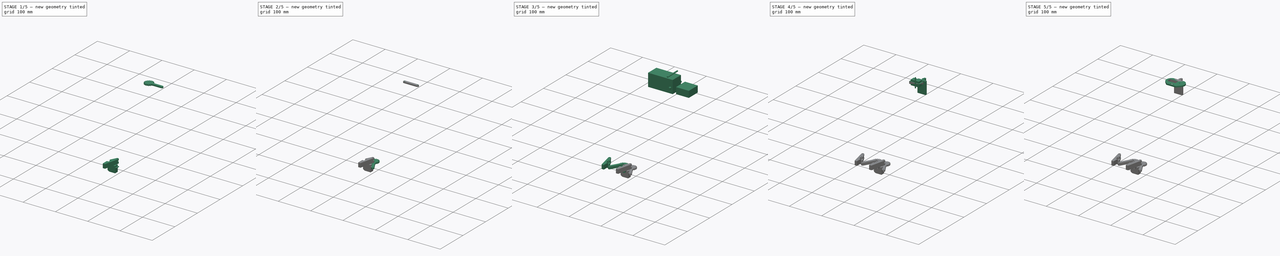
[diagram: build sequence overview — one tinted view per stage of 5, left to right]
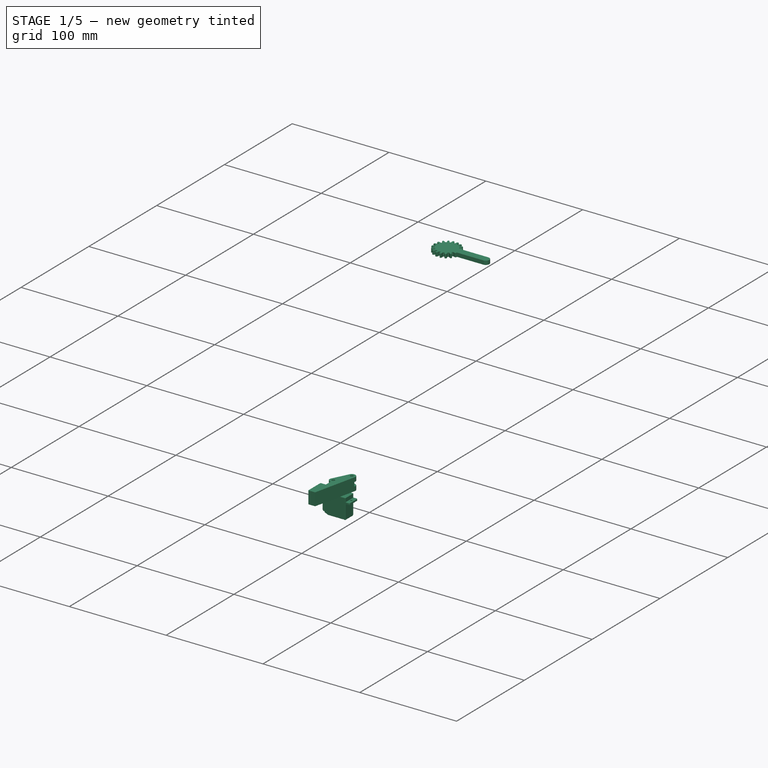
[diagram: stage 1 of 5 — iso view after this stage's code; geometry added in this stage tinted green]
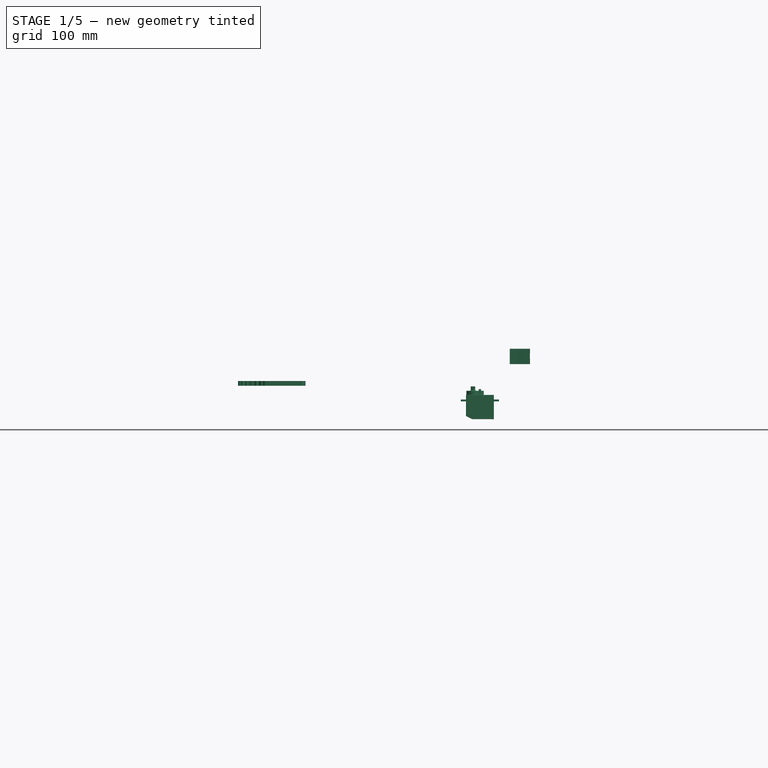
[diagram: stage 1 of 5 — front view after this stage's code; geometry added in this stage tinted green]
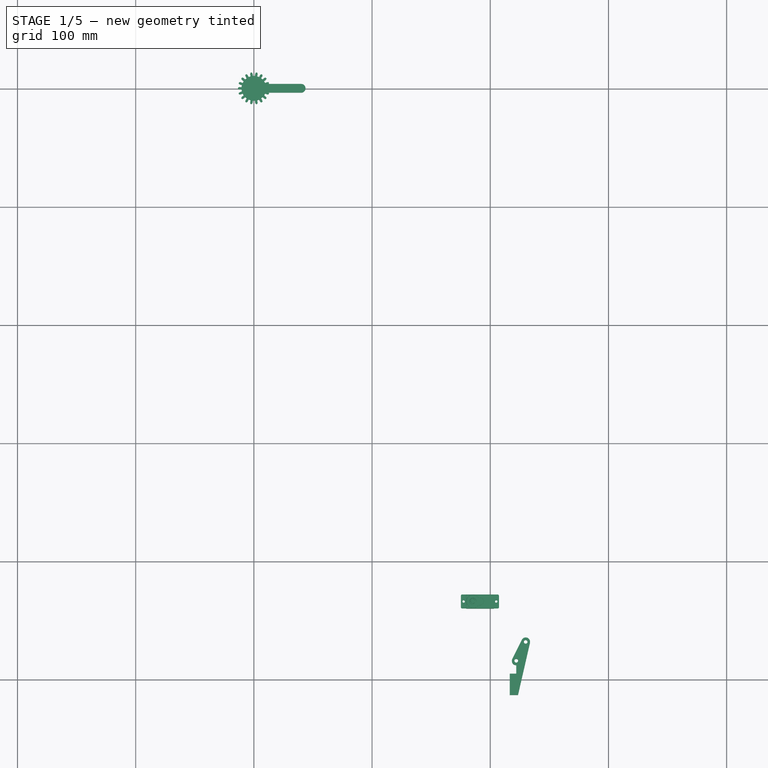
[diagram: stage 1 of 5 — top view after this stage's code; geometry added in this stage tinted green]
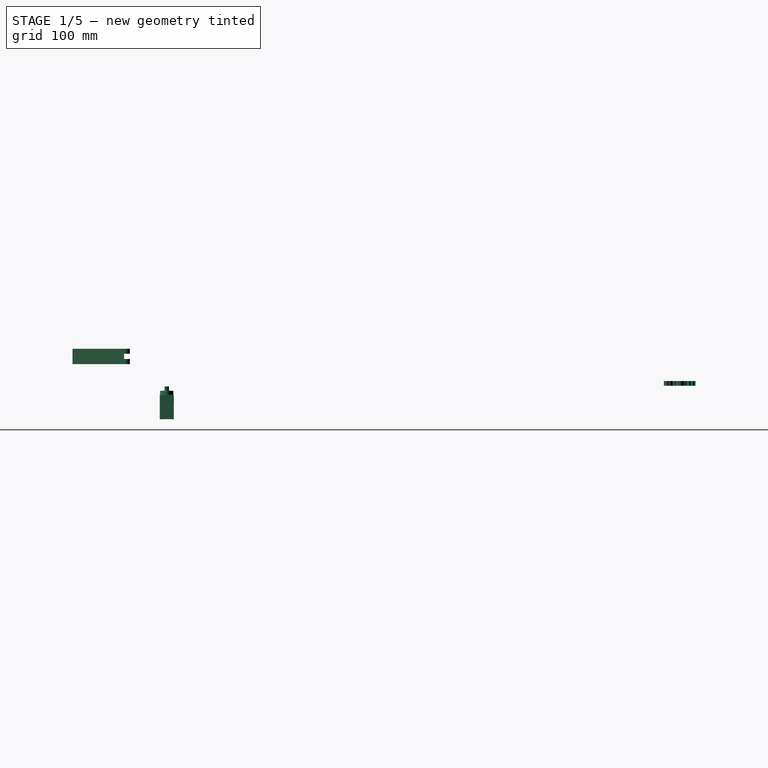
[diagram: stage 1 of 5 — right view after this stage's code; geometry added in this stage tinted green]
FCSTD DOCUMENT  (FreeCAD 0.16R6712 (Git))
Label: cajamotor
License: All rights reserved
LicenseURL: http://en.wikipedia.org/wiki/All_rights_reserved
objects: Part::FeaturePython×21, Part::Cut×12, Part::MultiFuse×9, Part::Cylinder×7, Sketcher::SketchObject×7, Part::Feature×6, Part::Box×5, PartDesign::Pad×4, Part::Fillet×3, PartDesign::Pocket×3, PartDesign::Body×2, Part::Part2DObjectPython×1, Part::Extrusion×1
note: 88 computed .brp shape members not serialized (recipe doc carries the construction recipe); baked Part::Feature solids carry a one-line shape summary decoded from their .brp

FEATURE [Sketcher::SketchObject] Sketch007  label="finger-sketch"
  sketch-geometry (9):
    g0: LineSegment StartX=0 StartY=0 StartZ=0 EndX=0 EndY=18 EndZ=0
    g1: LineSegment StartX=0 StartY=18 StartZ=0 EndX=-5.5 EndY=18 EndZ=0
    g2: LineSegment StartX=-5.5 StartY=18 StartZ=0 EndX=-5.5 EndY=25.2 EndZ=0
    g3: LineSegment StartX=-17.1064 StartY=44.073 StartZ=0 EndX=-7 EndY=0 EndZ=0
    g4: LineSegment StartX=-7 StartY=0 StartZ=0 EndX=0 EndY=0 EndZ=0
    g5: ArcOfCircle CenterX=-13.5 CenterY=44.9 CenterZ=0 NormalX=0 NormalY=0 NormalZ=1 Radius=3.7 StartAngle=0.463648 EndAngle=3.36701
    g6: ArcOfCircle CenterX=-5.5 CenterY=28.9 CenterZ=0 NormalX=0 NormalY=0 NormalZ=1 Radius=3.7 StartAngle=4.71239 EndAngle=6.74684
    g7: LineSegment StartX=-10.1906 StartY=46.5547 StartZ=0 EndX=-2.19063 EndY=30.5547 EndZ=0
    g8: Circle [constr] CenterX=-5.5 CenterY=28.9 CenterZ=0 NormalX=0 NormalY=0 NormalZ=1 Radius=3.7
  constraints (27):
    c: Vertical(g0)
    c: Coincident(g0,g1)
    c: Horizontal(g1)
    c: Coincident(g1,g2)
    c: Coincident(g3,g4)
    c: Coincident(g4,g0)
    c: Horizontal(g4)
    c: Coincident(g5,g3)
    c: Radius(g5) = 3.7
    c: Coincident(g6,g2)
    c: Coincident(g7,g5)
    c: Coincident(g7,g6)
    c: Equal(g6,g5)
    c: Tangent(g3,g5)
    c: Tangent(g7,g5)
    c: Tangent(g6,g7)
    c: Vertical(g2)
    c: DistanceY(g0) = 18
    c: DistanceX(g4) = 7
    c: DistanceX(g6,g5) = -8
    c: DistanceY(g6,g5) = 16
    c: PointOnObject(g6,g2)
    c: DistanceX(g1) = -5.5
    c: DistanceY(g2,g1) = -7.2
    c: Coincident(g0,g-1)
    c: Coincident(g8,g6)
    c: Equal(g6,g8)
FEATURE [PartDesign::Pad] Pad001  label="finger-body"
  Length = 13
  Length2 = 100
  Sketch = -> Sketch007
  Type = 0
FEATURE [Sketcher::SketchObject] Sketch001
  ExternalGeometry = -> [Pad001]
  Placement = pos=(10.4694,5.23469,0) rot=(0.400447,0.647936,0.647936;2.37981rad)
  Support = -> Pad001 [Face8]
  sketch-geometry (6):
    g0: LineSegment StartX=23.2529 StartY=8.7 StartZ=0 EndX=51.2529 EndY=8.7 EndZ=0
    g1: LineSegment StartX=51.2529 StartY=8.7 StartZ=0 EndX=51.2529 EndY=4.3 EndZ=0
    g2: LineSegment StartX=51.2529 StartY=4.3 StartZ=0 EndX=23.2529 EndY=4.3 EndZ=0
    g3: LineSegment StartX=23.2529 StartY=4.3 StartZ=0 EndX=23.2529 EndY=8.7 EndZ=0
    g4: LineSegment [constr] StartX=23.2529 StartY=6.5 StartZ=0 EndX=51.2529 EndY=6.5 EndZ=0
    g5: LineSegment [constr] StartX=37.2529 StartY=13 StartZ=0 EndX=37.2529 EndY=0 EndZ=0
  constraints (18):
    c: Coincident(g0,g1)
    c: Coincident(g1,g2)
    c: Coincident(g2,g3)
    c: Coincident(g3,g0)
    c: Horizontal(g0)
    c: Horizontal(g2)
    c: Vertical(g1)
    c: Vertical(g3)
    c: PointOnObject(g4,g3)
    c: PointOnObject(g4,g1)
    c: Symmetric(g2,g0,g4)
    c: DistanceY(g1) = -4.4
    c: PointOnObject(g5,g-3)
    c: PointOnObject(g5,g-1)
    c: Symmetric(g-3,g-3,g5)
    c: Symmetric(g4,g4,g5)
    c: DistanceX(g2) = -28
    c: Symmetric(g5,g5,g4)
FEATURE [PartDesign::Pocket] Pocket002  label="finger"
  Length = 7.4
  Sketch = -> Sketch001
  Type = 0
FEATURE [Part::Cylinder] Cylinder005  label="finger-drill-master"
  Angle = 360
  Height = 30
  Placement = pos=(0,0,-8) rot=(0,0,1;0rad)
  Radius = 1.6
FEATURE [Part::FeaturePython] Clone001  label="finger-claw-drill-1"  # Draft clone (typed FeaturePython)
  Objects = -> [Cylinder005]
  Placement = pos=(-5.5,28.9,-8) rot=(0,0,1;0rad)
  Scale = (1,1,1)
FEATURE [Part::FeaturePython] Clone002  label="finger-claw-drill-2"  # Draft clone (typed FeaturePython)
  Objects = -> [Cylinder005]
  Placement = pos=(-13.5,44.9,-8) rot=(0,0,1;0rad)
  Scale = (1,1,1)
FEATURE [Part::MultiFuse] Fusion011  label="finger-drills"
  Shapes = -> [Clone002,Clone001]
FEATURE [Part::Cut] Cut012  label="finger-final-src"
  Base = -> Pocket002
  Placement = pos=(0,-57,0) rot=(0,0,1;0rad)
  Tool = -> Fusion011
FEATURE [Part::Part2DObjectPython] InvoluteGear001  # Draft 2D object (typed FeaturePython)
  ExternalGear = true
  HighPrecision = true
  Modules = 1.35
  NumberOfTeeth = 18
  PressureAngle = 12
FEATURE [Sketcher::SketchObject] Sketch004  label="link-body-sketch002"
  sketch-geometry (4):
    g0: ArcOfCircle CenterX=0 CenterY=0 CenterZ=0 NormalX=0 NormalY=0 NormalZ=1 Radius=3.7 StartAngle=1.5708 EndAngle=4.71239
    g1: ArcOfCircle CenterX=40 CenterY=0 CenterZ=0 NormalX=0 NormalY=0 NormalZ=1 Radius=3.7 StartAngle=4.71239 EndAngle=7.85398
    g2: LineSegment StartX=0 StartY=-3.7 StartZ=0 EndX=40 EndY=-3.7 EndZ=0
    g3: LineSegment StartX=0 StartY=3.7 StartZ=0 EndX=40 EndY=3.7 EndZ=0
  constraints (9):
    c: Tangent(g0,g3) = 1.5708
    c: Tangent(g0,g2) = -1.5708
    c: Tangent(g2,g1) = -1.5708
    c: Tangent(g3,g1) = 1.5708
    c: Horizontal(g2)
    c: Equal(g0,g1)
    c: Coincident(g0,g-1)
    c: Radius(g0) = 3.7
    c: DistanceX(g2) = 40
FEATURE [PartDesign::Pad] Pad004  label="link-body002"
  Length = 4
  Length2 = 100
  Sketch = -> Sketch004
  Type = 0
FEATURE [Part::Extrusion] Extrude001
  Base = -> InvoluteGear001
  Dir = (0,0,4)
  Solid = true
FEATURE [Part::FeaturePython] Clone016  label="right-finger"  # Draft clone (typed FeaturePython)
  Objects = -> [Cut012]
  Placement = pos=(230.462,185.254,13) rot=(0,1,0;3.14159rad)
  Scale = (1,1,1)
FEATURE [Part::Feature] Part__Feature003  label="Emax-es08A-final"
  shape: bbox 32.2 x 12.1 x 25.4 mm, 95 faces (baked)
FEATURE [Part::Feature] Part__Feature004  label="Emax-es08A-final001"
  shape: bbox 3.784 x 3.784 x 8.4 mm, 50 faces (baked)
FEATURE [Part::Feature] Part__Feature005  label="Emax-es08A-final002"
  shape: bbox 1.8 x 1.8 x 15.3 mm, 18 faces (baked)
FEATURE [Part::Feature] Part__Feature006  label="Emax-es08A-final003"
  shape: bbox 1.8 x 1.8 x 15.3 mm, 18 faces (baked)
FEATURE [Part::Feature] Part__Feature007  label="Emax-es08A-final004"
  shape: bbox 1.8 x 1.8 x 15.3 mm, 18 faces (baked)
FEATURE [Part::Feature] Part__Feature008  label="Emax-es08A-final005"
  shape: bbox 1.8 x 1.8 x 15.3 mm, 18 faces (baked)
FEATURE [Part::MultiFuse] Fusion009  label="servo"
  Placement = pos=(72.7547,-498,1.99999) rot=(0,0.707107,0.707107;3.14159rad)
  Shapes = -> [Part__Feature003,Part__Feature004,Part__Feature005,Part__Feature006,Part__Feature007,Part__Feature008]
FEATURE [Part::FeaturePython] Clone184  label="Clone of right-finger"  # Draft clone (typed FeaturePython)
  Objects = -> [Clone016]
  Placement = pos=(216.462,-513.746,31.3) rot=(0,1,0;3.14159rad)
  Scale = (1,1,1)
FEATURE [Part::FeaturePython] Clone188  label="Clone of servo"  # Draft clone (typed FeaturePython)
  Objects = -> [Fusion009]
  Placement = pos=(191.25,-434,-18) rot=(0,0,1;3.14159rad)
  Scale = (1,1,1)
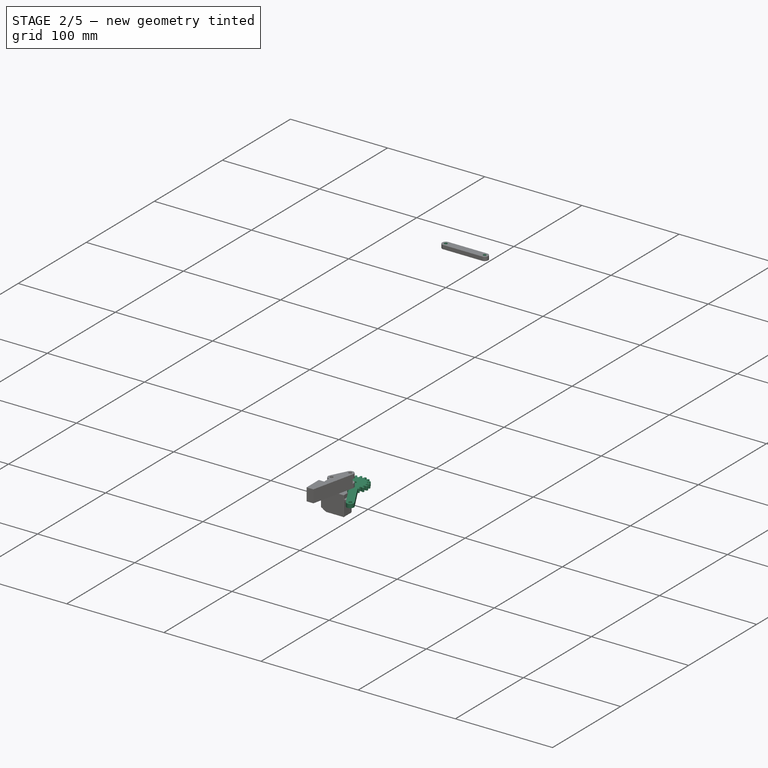
[diagram: stage 2 of 5 — iso view after this stage's code; geometry added in this stage tinted green]
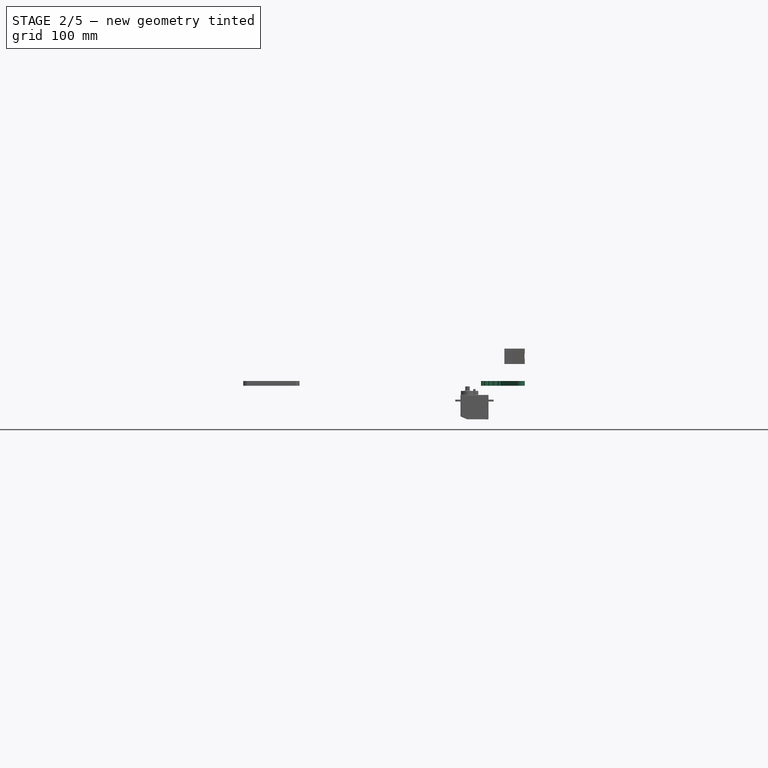
[diagram: stage 2 of 5 — front view after this stage's code; geometry added in this stage tinted green]
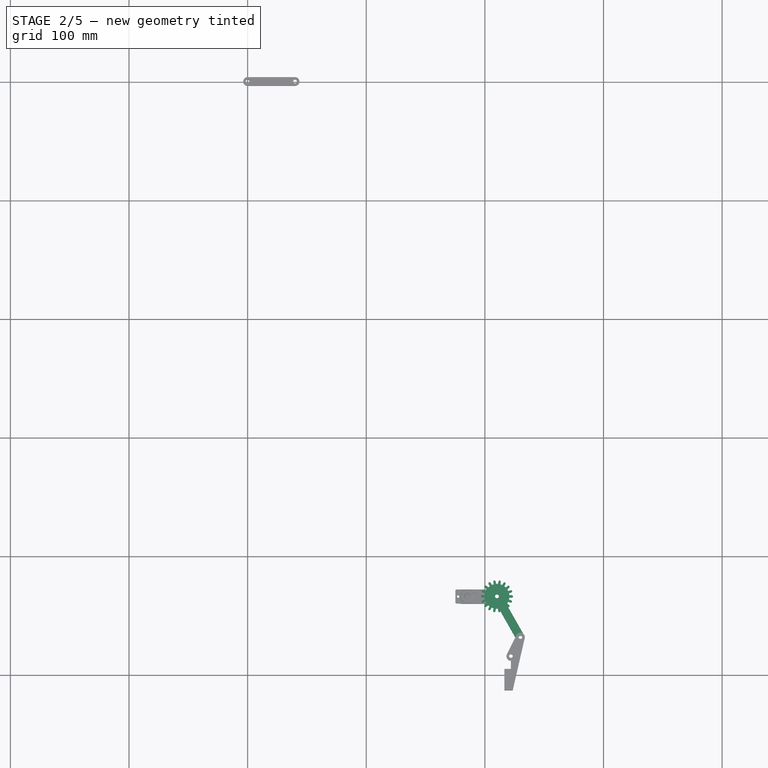
[diagram: stage 2 of 5 — top view after this stage's code; geometry added in this stage tinted green]
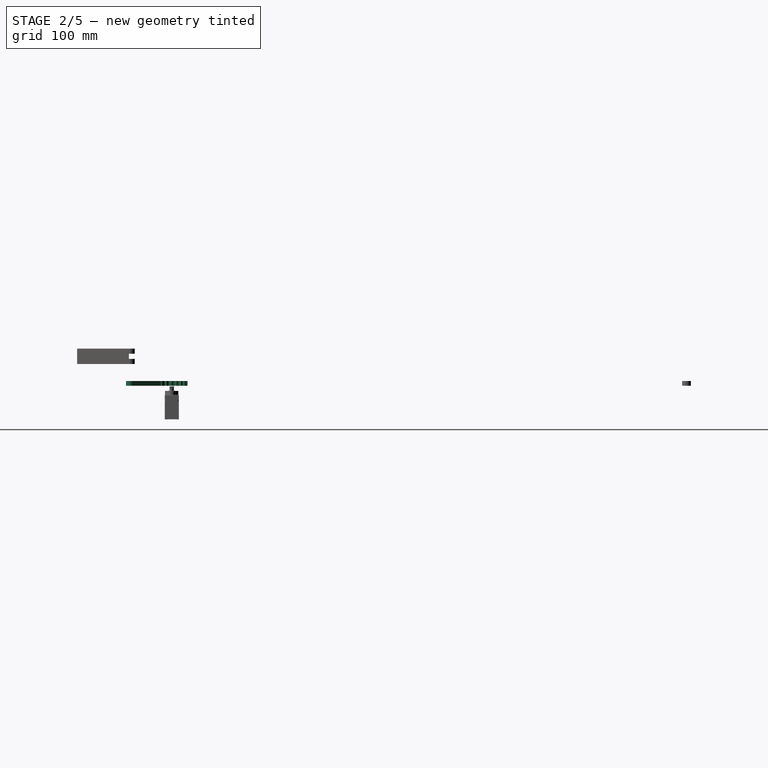
[diagram: stage 2 of 5 — right view after this stage's code; geometry added in this stage tinted green]
FEATURE [Sketcher::SketchObject] Sketch002  label="link-body-sketch"
  sketch-geometry (4):
    g0: ArcOfCircle CenterX=0 CenterY=0 CenterZ=0 NormalX=0 NormalY=0 NormalZ=1 Radius=3.7 StartAngle=1.5708 EndAngle=4.71239
    g1: ArcOfCircle CenterX=40 CenterY=0 CenterZ=0 NormalX=0 NormalY=0 NormalZ=1 Radius=3.7 StartAngle=4.71239 EndAngle=7.85398
    g2: LineSegment StartX=0 StartY=-3.7 StartZ=0 EndX=40 EndY=-3.7 EndZ=0
    g3: LineSegment StartX=0 StartY=3.7 StartZ=0 EndX=40 EndY=3.7 EndZ=0
  constraints (9):
    c: Tangent(g0,g3) = 1.5708
    c: Tangent(g0,g2) = -1.5708
    c: Tangent(g2,g1) = -1.5708
    c: Tangent(g3,g1) = 1.5708
    c: Horizontal(g2)
    c: Equal(g0,g1)
    c: Coincident(g0,g-1)
    c: Radius(g0) = 3.7
    c: DistanceX(g2) = 40
FEATURE [PartDesign::Pad] Pad002  label="link-body"
  Length = 4
  Length2 = 100
  Sketch = -> Sketch002
  Type = 0
FEATURE [Part::FeaturePython] Clone005  label="link-drill-1"  # Draft clone (typed FeaturePython)
  Objects = -> [Cylinder005]
  Placement = pos=(0,0,-8) rot=(0,0,1;0rad)
  Scale = (1,1,1)
FEATURE [Part::FeaturePython] Clone006  label="link-drill-002"  # Draft clone (typed FeaturePython)
  Objects = -> [Cylinder005]
  Placement = pos=(40,0,-8) rot=(0,0,1;0rad)
  Scale = (1,1,1)
FEATURE [Part::MultiFuse] Fusion012
  Shapes = -> [Clone005,Clone006]
FEATURE [Part::Cut] Cut001  label="link-master"
  Base = -> Pad002
  Tool = -> Fusion012
FEATURE [Part::Cylinder] Cylinder006  label="finger-drill-master002"
  Angle = 360
  Height = 30
  Placement = pos=(0,0,-8) rot=(0,0,1;0rad)
  Radius = 1.6
FEATURE [Part::FeaturePython] Clone013  label="gear-drill-003"  # Draft clone (typed FeaturePython)
  Objects = -> [Cylinder006]
  Placement = pos=(0,0,-8) rot=(0,0,1;0rad)
  Scale = (1,1,1)
FEATURE [Part::FeaturePython] Clone014  label="gear-drill-004"  # Draft clone (typed FeaturePython)
  Objects = -> [Cylinder006]
  Placement = pos=(40,0,-8) rot=(0,0,1;0rad)
  Scale = (1,1,1)
FEATURE [Part::MultiFuse] Fusion005  label="gear-drills001"
  Shapes = -> [Clone013,Clone014]
FEATURE [Part::MultiFuse] Fusion006
  Shapes = -> [Pad004,Extrude001]
FEATURE [Part::Cut] Cut003  label="right-gear"
  Base = -> Fusion006
  Placement = pos=(12.4,16,4.5) rot=(0,0,-1;1.5708rad)
  Tool = -> Fusion005
FEATURE [Part::FeaturePython] Clone015  label="right-gear001"  # Draft clone (typed FeaturePython)
  Objects = -> [Cut003]
  Placement = pos=(224.203,264.934,4.7) rot=(0,0,-1;1.05416rad)
  Scale = (1,1,1)
FEATURE [Part::FeaturePython] Clone183  label="Clone of right-gear001"  # Draft clone (typed FeaturePython)
  Objects = -> [Clone015]
  Placement = pos=(210.203,-434.066,0) rot=(0,0,-1;1.05416rad)
  Scale = (1,1,1)
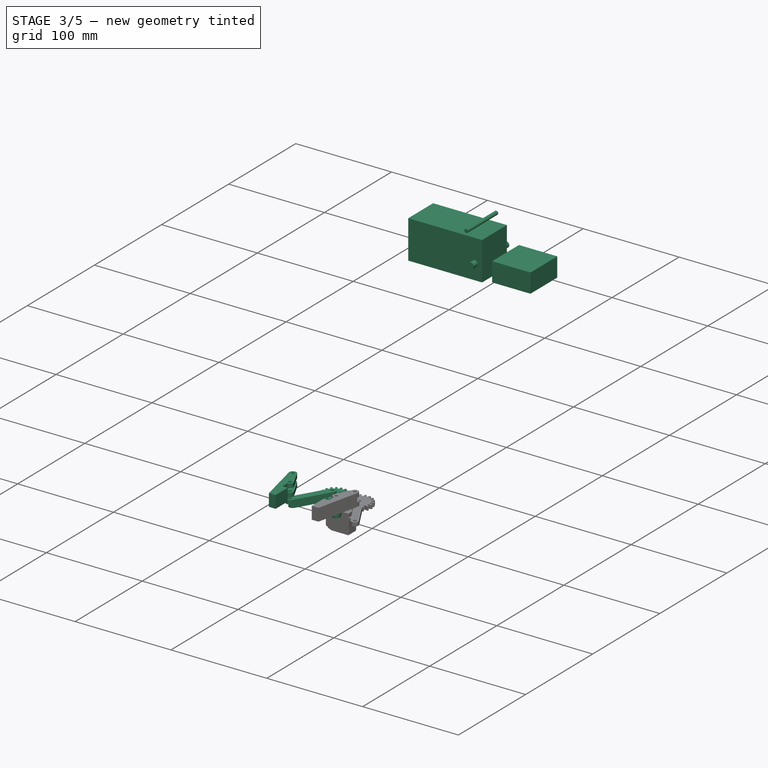
[diagram: stage 3 of 5 — iso view after this stage's code; geometry added in this stage tinted green]
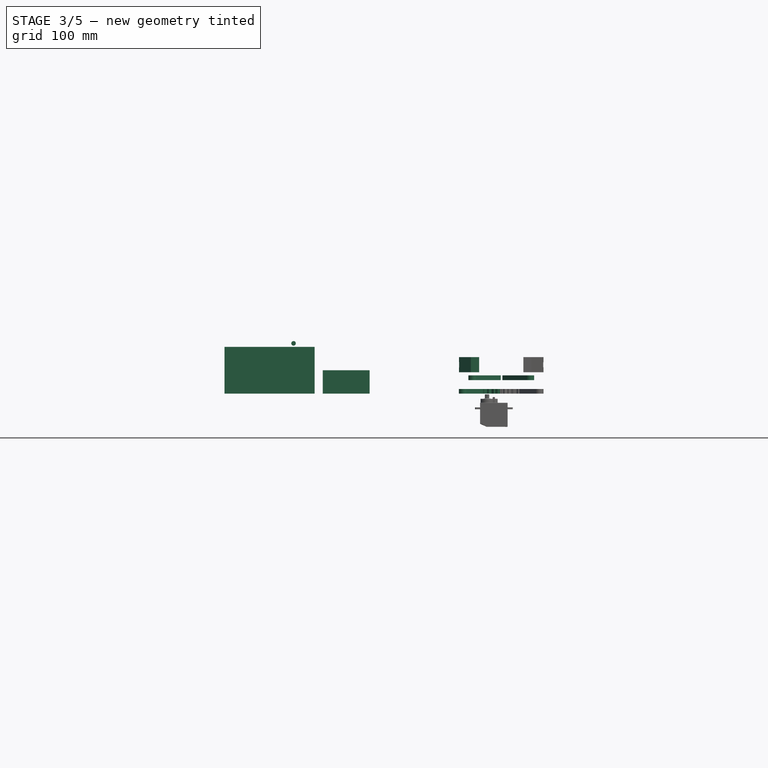
[diagram: stage 3 of 5 — front view after this stage's code; geometry added in this stage tinted green]
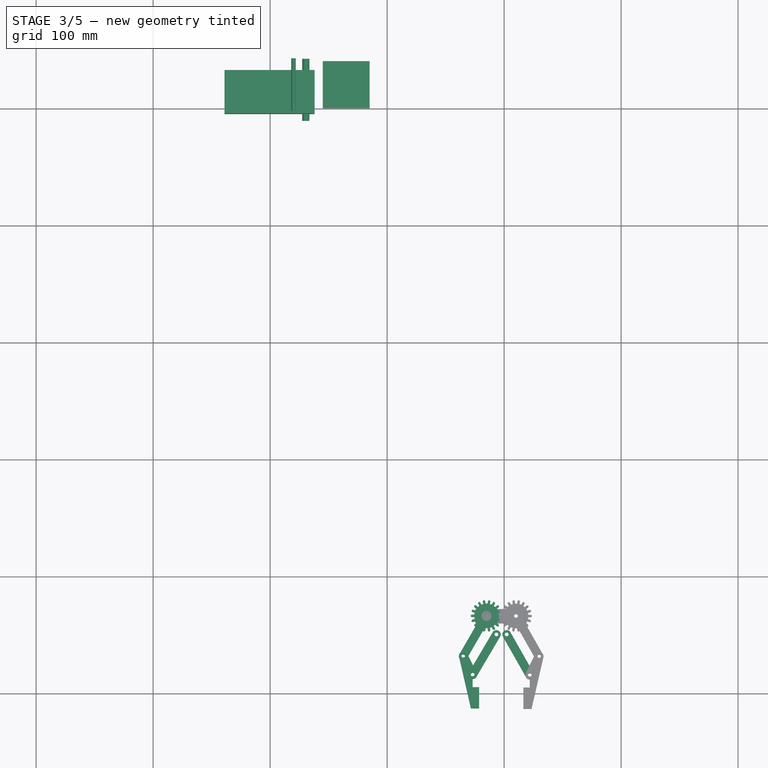
[diagram: stage 3 of 5 — top view after this stage's code; geometry added in this stage tinted green]
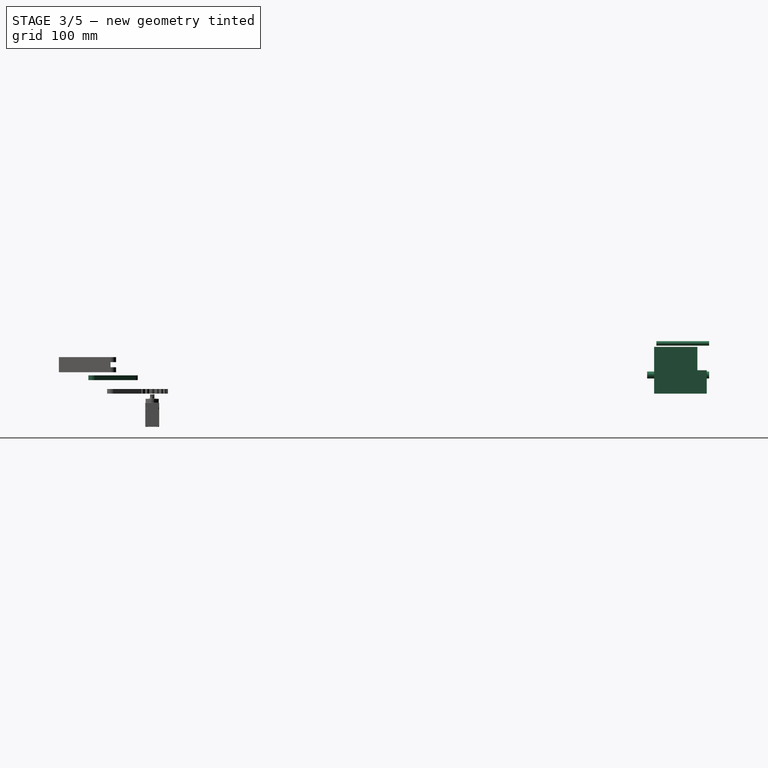
[diagram: stage 3 of 5 — right view after this stage's code; geometry added in this stage tinted green]
FEATURE [PartDesign::Body] Body002
FEATURE [PartDesign::Body] Body003  label="enganche"
  Placement = pos=(45,0,0) rot=(0,0,1;0rad)
FEATURE [Part::Box] Box005  label="Cubo004"
  Height = 20
  Length = 40
  Placement = pos=(45,0,0) rot=(0,0,1;0rad)
  Width = 40
FEATURE [Part::Cylinder] Cylinder003  label="Taladro"
  Angle = 360
  Height = 53
  Placement = pos=(30.5,42,16) rot=(1,0,0;1.5708rad)
  Radius = 3
FEATURE [Part::Cylinder] Cylinder004  label="Cilindro002"
  Angle = 360
  Height = 45
  Placement = pos=(20,42,43) rot=(1,0,0;1.5708rad)
  Radius = 1.95
FEATURE [Part::Box] Box006  label="Cubo005"
  Height = 40
  Length = 77
  Placement = pos=(-39,-5,0) rot=(0,0,1;0rad)
  Width = 37
FEATURE [Part::Cut] Cut011  label="left-gear"
  Placement = pos=(185,-434,0) rot=(0,0,1;4.18879rad)
FEATURE [Sketcher::SketchObject] Sketch
  Placement = pos=(185,-434,0) rot=(-0.5,0.866025,0;3.14159rad)
  Support = -> Cut011 [Face4]
  sketch-geometry (5):
    g0: ArcOfCircle CenterX=0 CenterY=0 CenterZ=0 NormalX=0 NormalY=0 NormalZ=1 Radius=4.2 StartAngle=1.45288 EndAngle=4.83031
    g1: ArcOfCircle CenterX=17.2 CenterY=0 CenterZ=0 NormalX=0 NormalY=0 NormalZ=1 Radius=2.2 StartAngle=4.73913 EndAngle=7.82723
    g2: LineSegment [constr] StartX=0 StartY=0 StartZ=0 EndX=17.2 EndY=0 EndZ=0
    g3: LineSegment StartX=0.494118 StartY=4.17083 StartZ=0 EndX=17.2588 EndY=2.19921 EndZ=0
    g4: LineSegment StartX=0.494118 StartY=-4.17083 StartZ=0 EndX=17.2588 EndY=-2.19921 EndZ=0
  constraints (12):
    c: Coincident(g0,g-1)
    c: PointOnObject(g1,g-1)
    c: Radius(g0) = 4.2
    c: Radius(g1) = 2.2
    c: Horizontal(g2)
    c: DistanceX(g-1,g1) = 17.2
    c: Coincident(g-1,g2)
    c: Coincident(g1,g3)
    c: Coincident(g0,g3)
    c: Coincident(g0,g4)
    c: Coincident(g1,g4)
    c: Coincident(g1,g2)
FEATURE [PartDesign::Pocket] Pocket
  Length = 3
  Placement = pos=(185,-434,0) rot=(0,0,-1;2.0944rad)
  Sketch = -> Sketch
  Type = 0
FEATURE [Sketcher::SketchObject] Sketch006
  Placement = pos=(185,-434,3) rot=(-0.5,0.866025,0;3.14159rad)
  Support = -> Pocket [Face175]
  sketch-geometry (1):
    g0: Circle CenterX=0 CenterY=0 CenterZ=0 NormalX=0 NormalY=0 NormalZ=1 Radius=4.2
  constraints (2):
    c: Coincident(g0,g-1)
    c: Radius(g0) = 4.2
FEATURE [PartDesign::Pocket] Pocket001
  Length = 5
  Placement = pos=(185,-434,0) rot=(0,0,-1;2.0944rad)
  Sketch = -> Sketch006
  Type = 0
FEATURE [Part::FeaturePython] Clone003  label="left-finger"  # Draft clone (typed FeaturePython)
  Objects = -> [Cut012]
  Placement = pos=(192.603,185.566,0) rot=(0,0,1;0rad)
  Scale = (1,1,1)
FEATURE [Part::FeaturePython] Clone007  label="left-link"  # Draft clone (typed FeaturePython)
  Objects = -> [Cut001]
  Placement = pos=(187.103,214.466,4.3) rot=(0,0,1;1.03858rad)
  Scale = (1,1,1)
FEATURE [Part::FeaturePython] Clone017  label="right-link"  # Draft clone (typed FeaturePython)
  Objects = -> [Cut001]
  Placement = pos=(216.204,248.934,4.3) rot=(0,0,-1;1.05416rad)
  Scale = (1,1,1)
FEATURE [Part::FeaturePython] Clone180  label="Clone of left-finger"  # Draft clone (typed FeaturePython)
  Objects = -> [Clone003]
  Placement = pos=(178.603,-513.434,18.3) rot=(0,0,1;0rad)
  Scale = (1,1,1)
FEATURE [Part::FeaturePython] Clone181  label="Clone of left-link"  # Draft clone (typed FeaturePython)
  Objects = -> [Clone007]
  Placement = pos=(173.103,-484.534,11.6) rot=(0,0,1;1.03858rad)
  Scale = (1,1,1)
FEATURE [Part::FeaturePython] Clone182  label="Clone of right-link"  # Draft clone (typed FeaturePython)
  Objects = -> [Clone017]
  Placement = pos=(202.204,-450.066,11.6) rot=(0,0,-1;1.05416rad)
  Scale = (1,1,1)
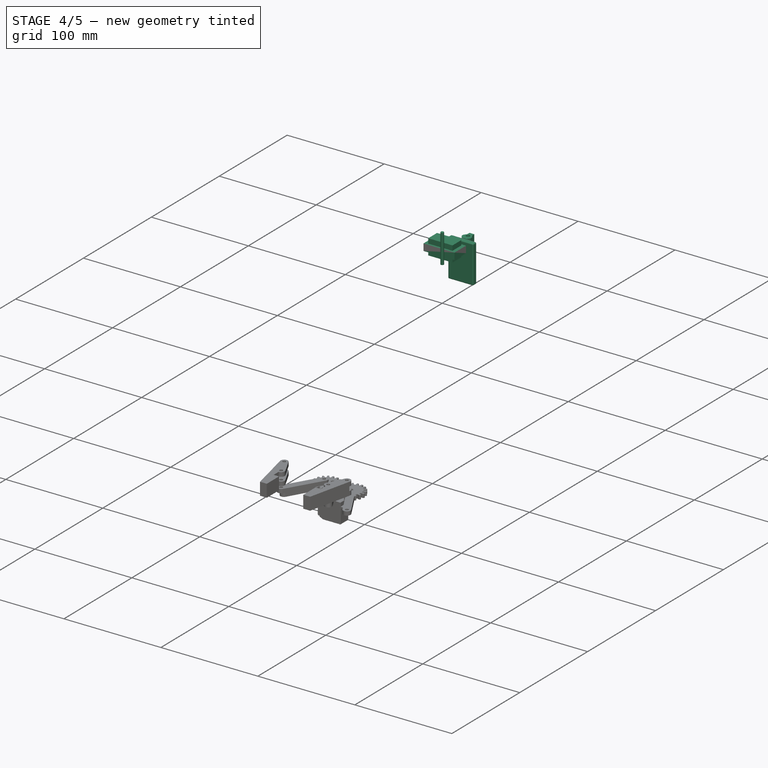
[diagram: stage 4 of 5 — iso view after this stage's code; geometry added in this stage tinted green]
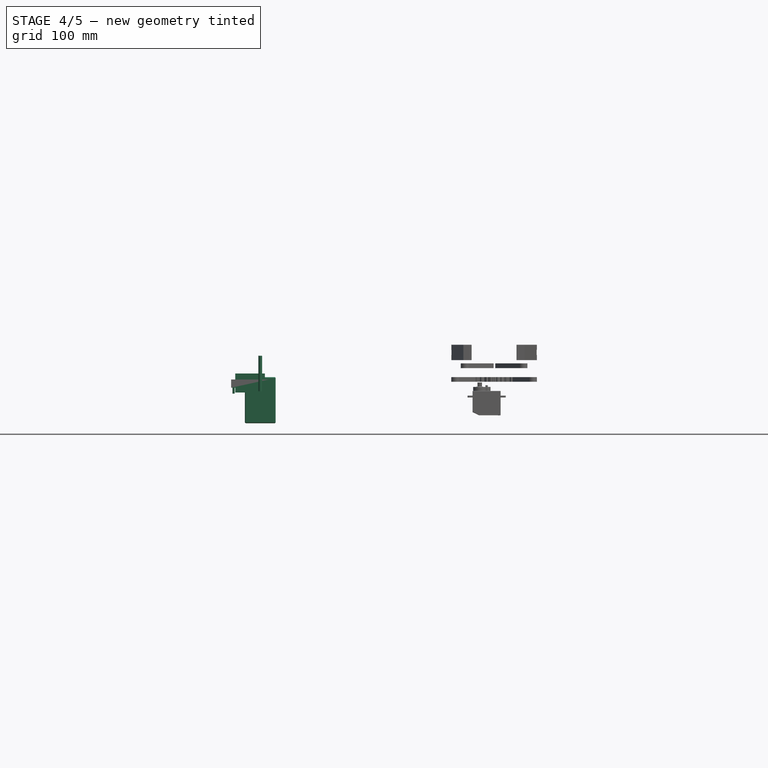
[diagram: stage 4 of 5 — front view after this stage's code; geometry added in this stage tinted green]
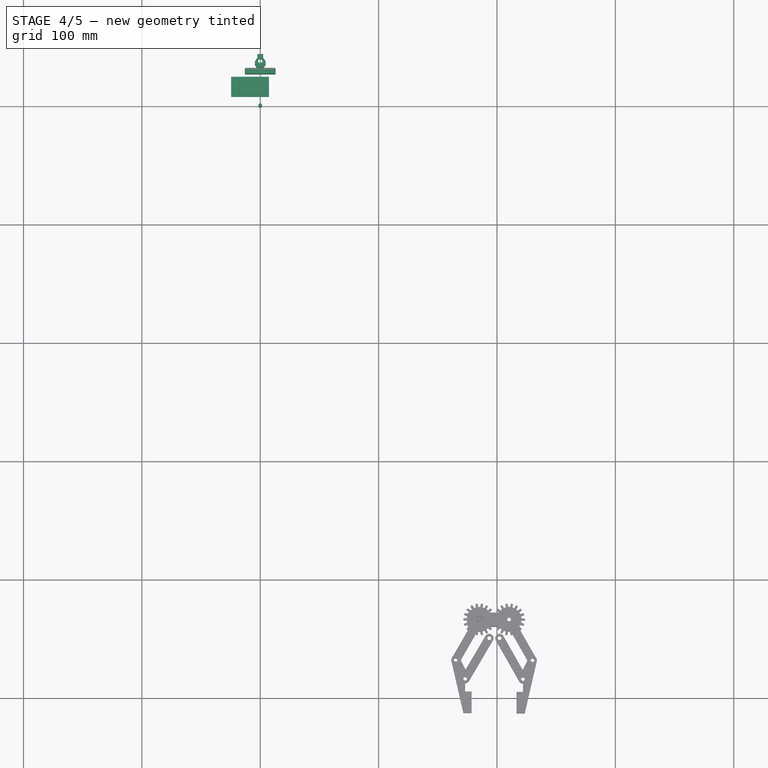
[diagram: stage 4 of 5 — top view after this stage's code; geometry added in this stage tinted green]
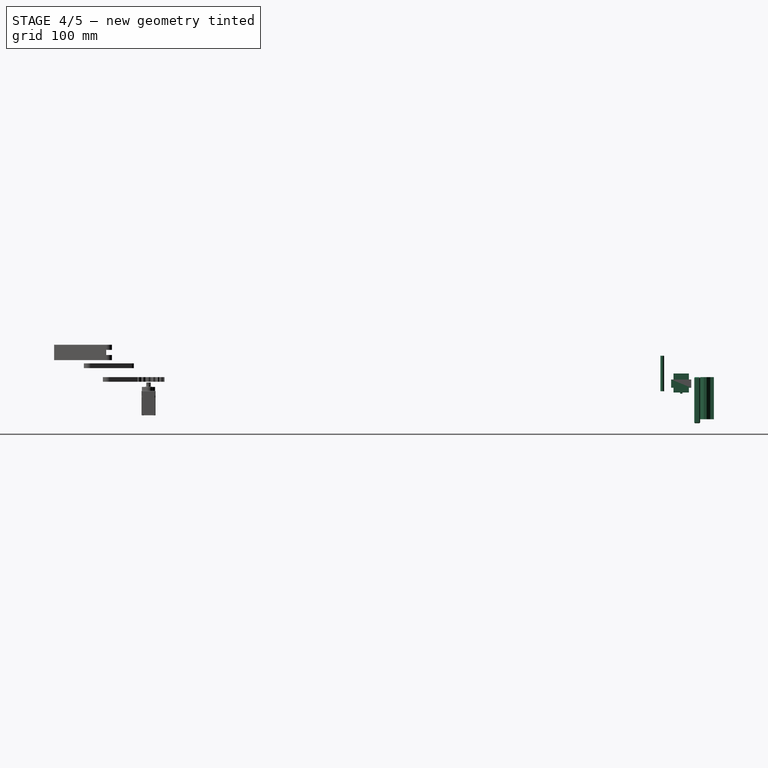
[diagram: stage 4 of 5 — right view after this stage's code; geometry added in this stage tinted green]
FEATURE [Part::Cylinder] Cylinder001  label="finger-drill-master001"
  Angle = 360
  Height = 30
  Placement = pos=(0,0,-8) rot=(0,0,1;0rad)
  Radius = 1.6
FEATURE [Part::Box] Box  label="Cube"
  Height = 7
  Length = 32
  Placement = pos=(-24.6,7.5,-5) rot=(0,0,1;0rad)
  Width = 17
FEATURE [Part::Box] Box001  label="Cube001"
  Height = 16
  Length = 25
  Placement = pos=(-21.1,9.5,-9) rot=(0,0,1;0rad)
  Width = 13
FEATURE [Part::Cylinder] Cylinder  label="Cilindro"
  Angle = 360
  Height = 10
  Placement = pos=(-22.5,16,-10) rot=(0,0,1;0rad)
  Radius = 1
FEATURE [Part::Box] Box002  label="Cubo"
  Height = 39
  Length = 26
  Placement = pos=(-13,27,2) rot=(0,0,1;0rad)
  Width = 5
FEATURE [Part::Fillet] Fillet
  Base = -> Box002
  Edges = 1 edges r=1: [Edge8]
FEATURE [Part::Fillet] Fillet001
  Base = -> Fillet
  Edges = 2 edges r=1: [Edge7,Edge14]
FEATURE [Part::Fillet] Fillet002
  Base = -> Fillet001
  Edges = 15 edges r=1: [Edge1,Edge3,Edge4,Edge5,Edge6,Edge7,Edge9,Edge10,Edge12,Edge14,Edge15,Edge16,Edge17,Edge18,Edge19]
  Placement = pos=(0,0,-37) rot=(0,0,1;0rad)
FEATURE [Part::Cut] Cut007  label="enganche002"
  Base = -> Box005
  Placement = pos=(-45,0,37) rot=(0,0,1;0rad)
  Tool = -> Body003
FEATURE [Part::MultiFuse] Fusion001
  Shapes = -> [Cut007,Body002]
FEATURE [Part::Cut] Cut008
  Base = -> Fusion001
  Tool = -> Cylinder003
FEATURE [Part::Cut] Cut009  label="Cajafinal"
  Base = -> Cut008
  Placement = pos=(-20,-5,40) rot=(-1,0,0;1.5708rad)
  Tool = -> Cylinder004
FEATURE [Part::Cut] Cut010
  Base = -> Cut009
  Placement = pos=(0,0,-36) rot=(0,0,1;0rad)
  Tool = -> Box006
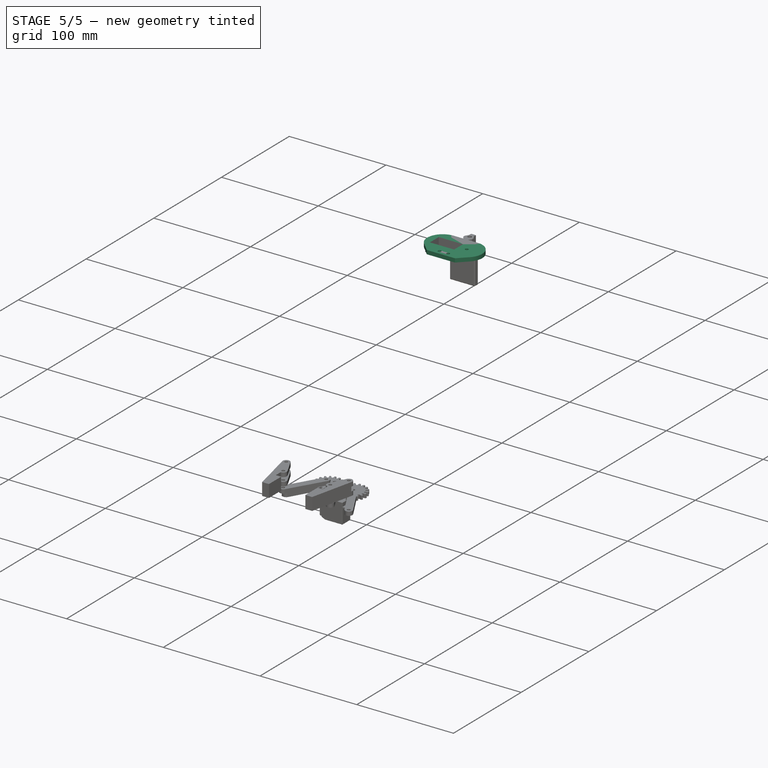
[diagram: stage 5 of 5 — iso view after this stage's code; geometry added in this stage tinted green]
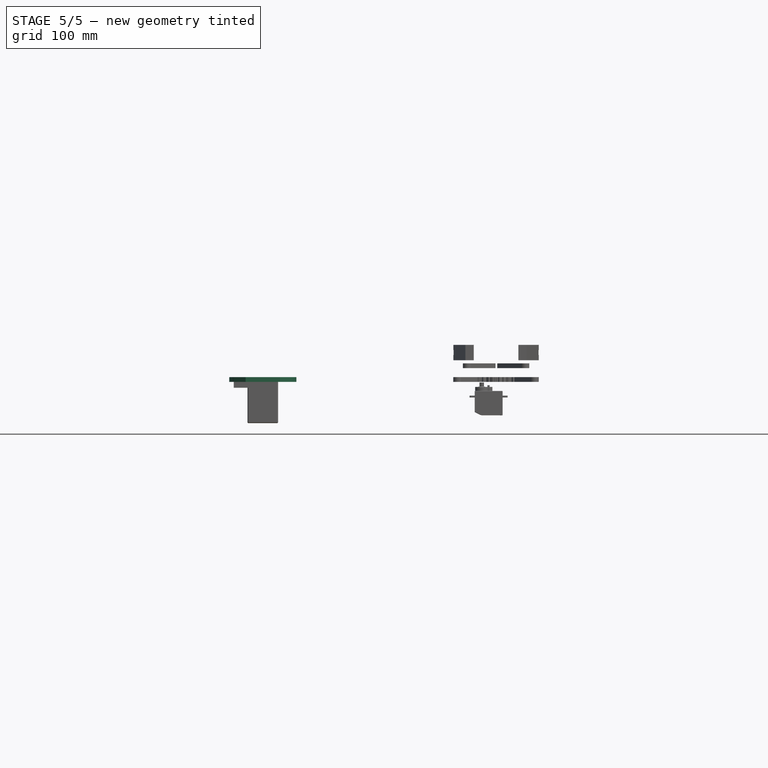
[diagram: stage 5 of 5 — front view after this stage's code; geometry added in this stage tinted green]
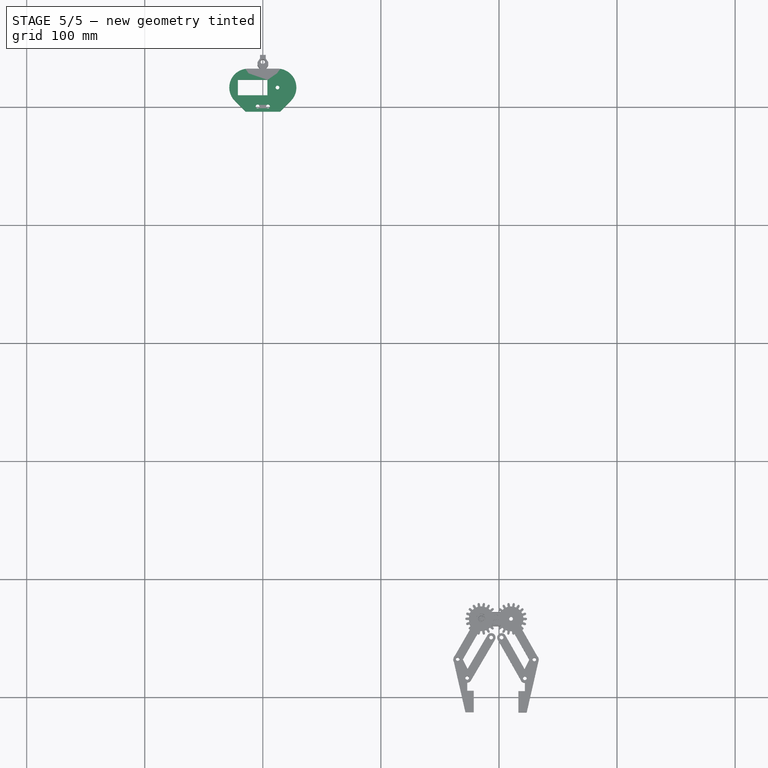
[diagram: stage 5 of 5 — top view after this stage's code; geometry added in this stage tinted green]
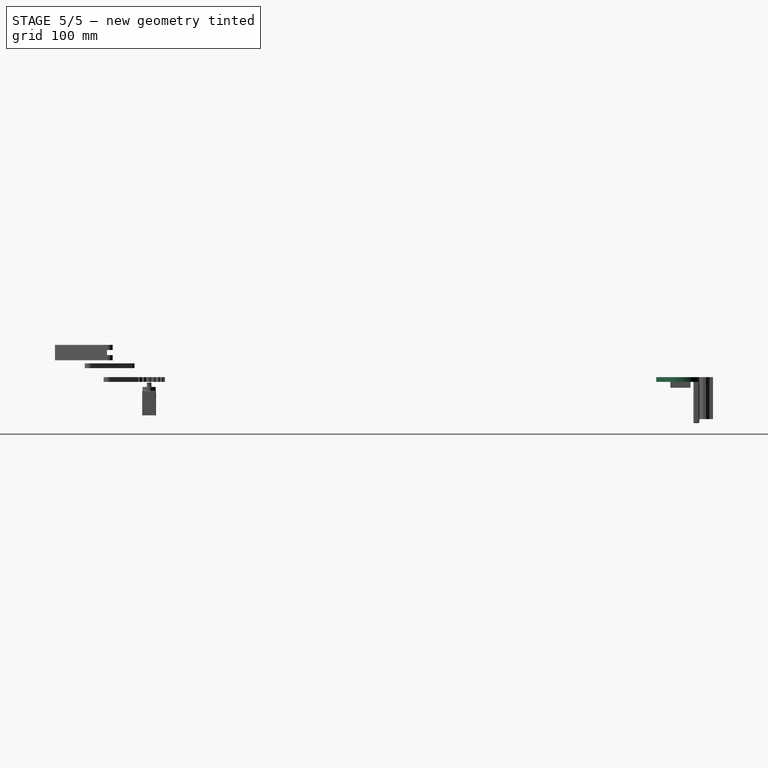
[diagram: stage 5 of 5 — right view after this stage's code; geometry added in this stage tinted green]
FEATURE [Sketcher::SketchObject] Sketch005  label="base-sketch"
  sketch-geometry (10):
    g0: LineSegment StartX=14.5274 StartY=-4.5 StartZ=0 EndX=-14.5274 EndY=-4.5 EndZ=0
    g1: LineSegment StartX=-14.5274 StartY=-4.5 StartZ=0 EndX=-23.7137 EndY=4.68629 EndZ=0
    g2: LineSegment StartX=14.5274 StartY=-4.5 StartZ=0 EndX=23.7137 EndY=4.68629 EndZ=0
    g3: ArcOfCircle CenterX=-12.4 CenterY=16 CenterZ=0 NormalX=0 NormalY=0 NormalZ=1 Radius=16 StartAngle=1.5708 EndAngle=3.92699
    g4: ArcOfCircle CenterX=12.4 CenterY=16 CenterZ=0 NormalX=0 NormalY=0 NormalZ=1 Radius=16 StartAngle=5.49779 EndAngle=7.85398
    g5: LineSegment StartX=-12.4 StartY=32 StartZ=0 EndX=12.4001 EndY=32 EndZ=0
    g6: LineSegment [constr] StartX=-12.4 StartY=16 StartZ=0 EndX=12.4 EndY=16 EndZ=0
    g7: LineSegment [constr] StartX=-12.4 StartY=16 StartZ=0 EndX=-4.4 EndY=0 EndZ=0
    g8: LineSegment [constr] StartX=-4.4 StartY=0 StartZ=0 EndX=4.4 EndY=0 EndZ=0
    g9: LineSegment [constr] StartX=4.4 StartY=0 StartZ=0 EndX=12.4 EndY=16 EndZ=0
  constraints (29):
    c: Horizontal(g0)
    c: Coincident(g0,g1)
    c: Coincident(g0,g2)
    c: Coincident(g3,g1)
    c: Horizontal(g5)
    c: Coincident(g5,g3)
    c: Coincident(g5,g4)
    c: Horizontal(g6)
    c: Coincident(g7,g8)
    c: Horizontal(g8)
    c: Coincident(g8,g9)
    c: Coincident(g9,g6)
    c: Coincident(g7,g6)
    c: PointOnObject(g8,g-1)
    c: Symmetric(g7,g8,g-2)
    c: Symmetric(g6,g6,g-2)
    c: DistanceX(g8) = 8.8
    c: DistanceX(g6) = 24.8
    c: DistanceY(g6,g8) = -16
    c: Symmetric(g0,g0,g-2)
    c: DistanceY(g8,g0) = -4.5
    c: Angle(g-1,g1) = 2.35619
    c: Coincident(g3,g6)
    c: Coincident(g4,g6)
    c: Tangent(g1,g3)
    c: Coincident(g2,g4)
    c: Symmetric(g1,g2,g-2)
    c: Tangent(g5,g3)
    c: Radius(g3) = 16
FEATURE [PartDesign::Pad] Pad005  label="base-body"
  Length = 4
  Length2 = 100
  Sketch = -> Sketch005
  Type = 0
FEATURE [Part::FeaturePython] Clone019  label="base-drill-1"  # Draft clone (typed FeaturePython)
  Objects = -> [Cylinder001]
  Placement = pos=(-12.4012,16,-8) rot=(0,0,1;0rad)
  Scale = (1,1,1)
FEATURE [Part::FeaturePython] Clone020  label="base-drill-2"  # Draft clone (typed FeaturePython)
  Objects = -> [Cylinder001]
  Placement = pos=(-4.40118,-8.7e-11,-8) rot=(0,0,1;0rad)
  Scale = (1,1,1)
FEATURE [Part::FeaturePython] Clone021  label="base-drill-3"  # Draft clone (typed FeaturePython)
  Objects = -> [Cylinder001]
  Placement = pos=(12.4011,16,-8) rot=(0,0,1;0rad)
  Scale = (1,1,1)
FEATURE [Part::FeaturePython] Clone022  label="base-drill-4"  # Draft clone (typed FeaturePython)
  Objects = -> [Cylinder001]
  Placement = pos=(4.40118,-5.3e-11,-8) rot=(0,0,1;0rad)
  Scale = (1,1,1)
FEATURE [Part::MultiFuse] Fusion007  label="base-drills"
  Shapes = -> [Clone019,Clone021,Clone020,Clone022]
FEATURE [Part::Cut] Cut004  label="base-copia"
  Base = -> Pad005
  Tool = -> Fusion007
FEATURE [Part::MultiFuse] Fusion010
  Shapes = -> [Cut004,Box]
FEATURE [Part::Cut] Cut005
  Base = -> Fusion010
  Tool = -> Box001
FEATURE [Part::Cylinder] Cylinder002  label="Cilindro001"
  Angle = 360
  Height = 10
  Placement = pos=(5.3,16,-8) rot=(0,0,1;0rad)
  Radius = 1
FEATURE [Part::Cut] Cut
  Base = -> Cut005
  Tool = -> Cylinder
FEATURE [Part::Cut] Cut006
  Base = -> Cut
  Tool = -> Cylinder002
FEATURE [Part::MultiFuse] Fusion
  Shapes = -> [Cut010,Fillet002,Cut006]
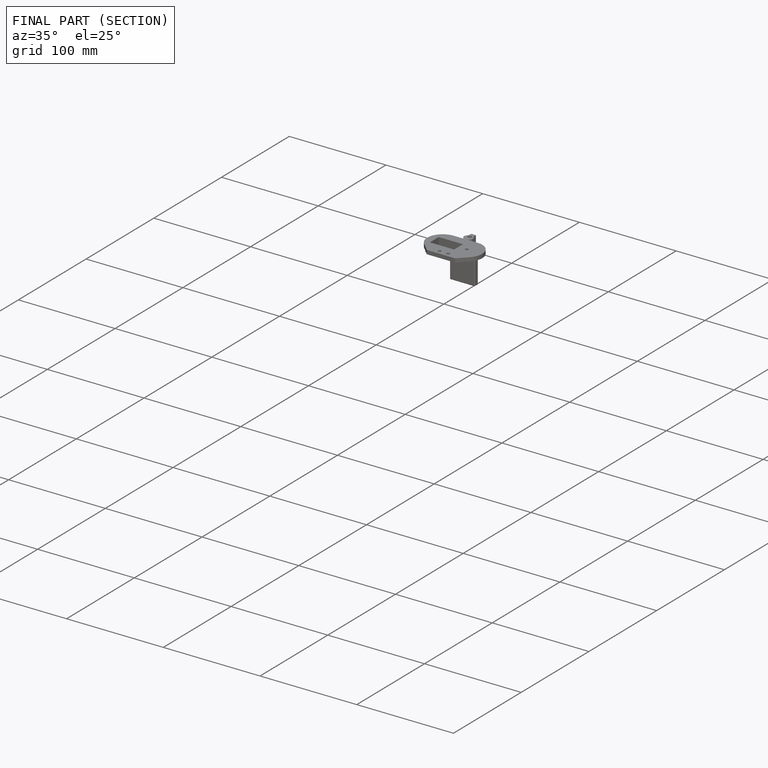
[diagram: finished part — half-section view (interior)]
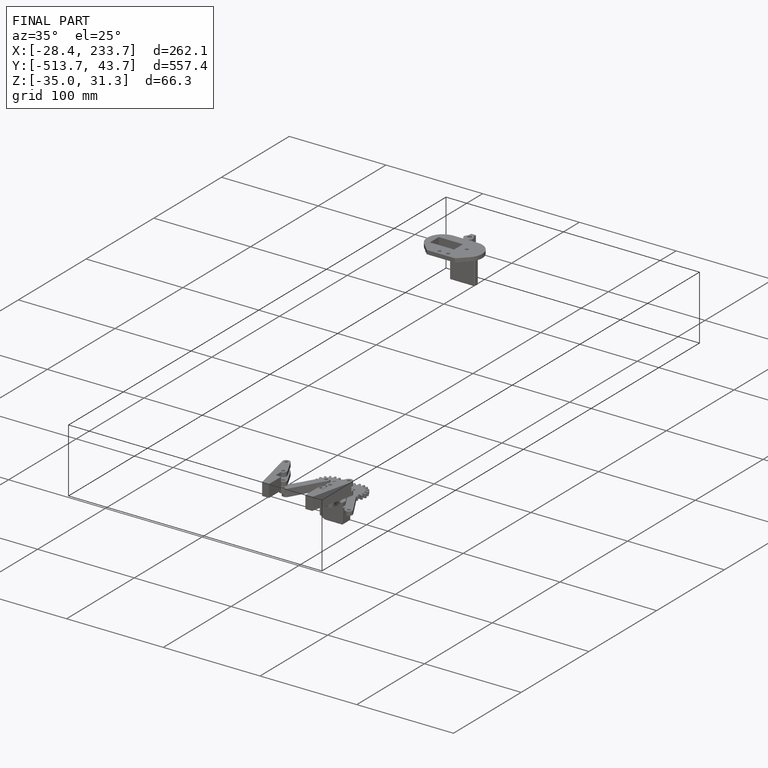
[diagram: finished part — iso view with bounding-box wireframe]
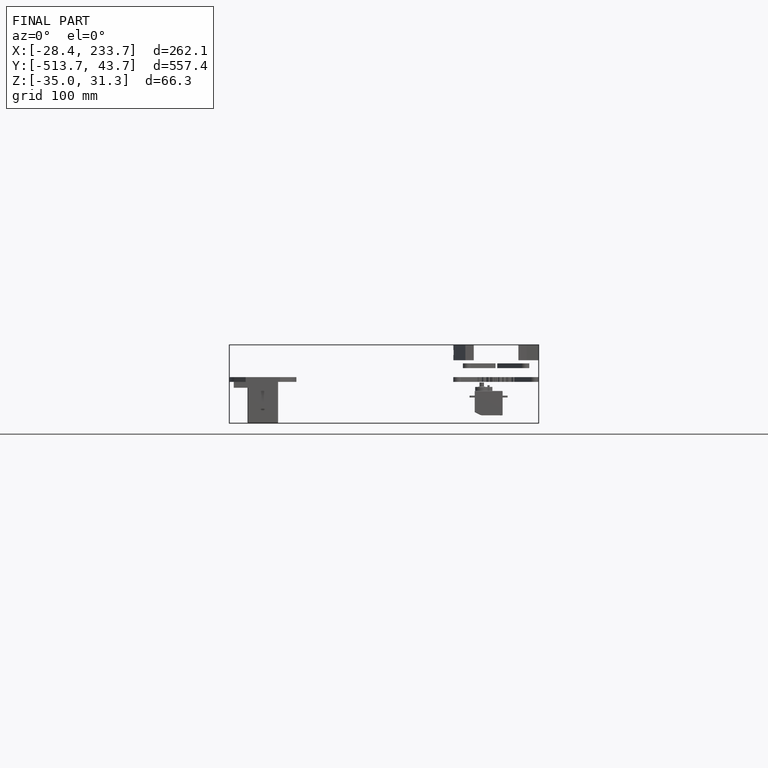
[diagram: finished part — front view with bounding-box wireframe]
